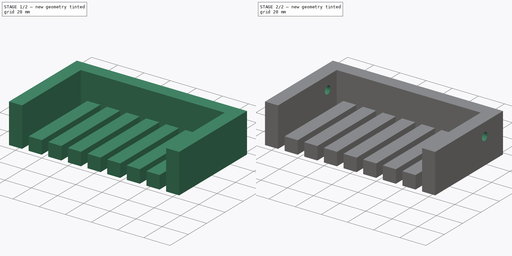
[diagram: build sequence overview — one tinted view per stage of 2, left to right]
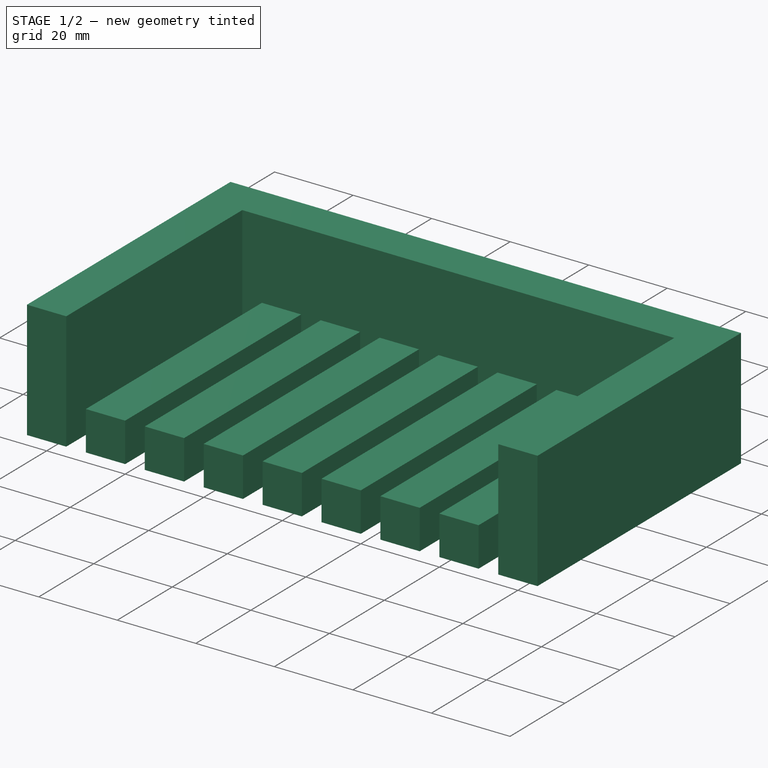
[diagram: stage 1 of 2 — iso view after this stage's code; geometry added in this stage tinted green]
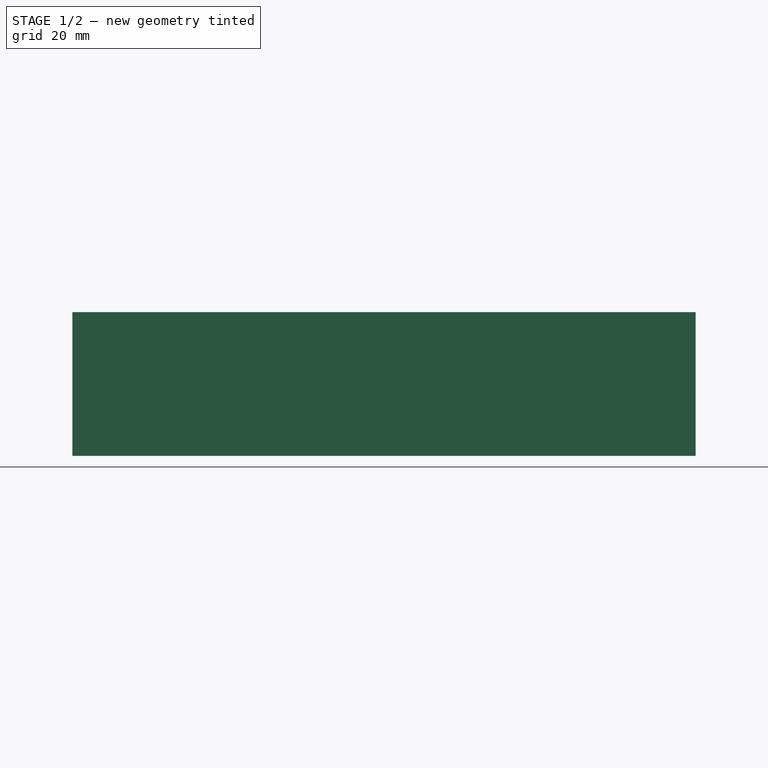
[diagram: stage 1 of 2 — front view after this stage's code; geometry added in this stage tinted green]
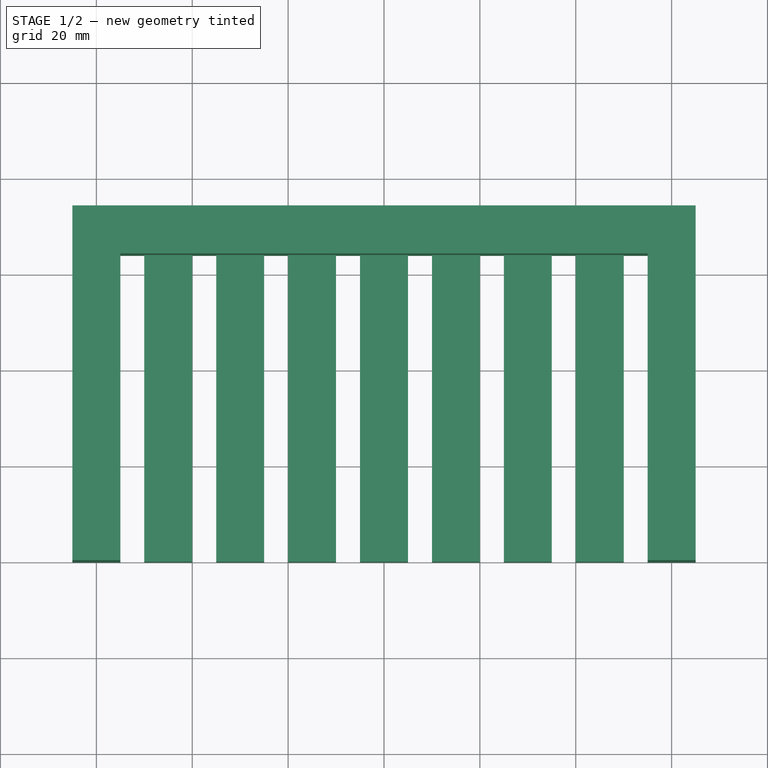
[diagram: stage 1 of 2 — top view after this stage's code; geometry added in this stage tinted green]
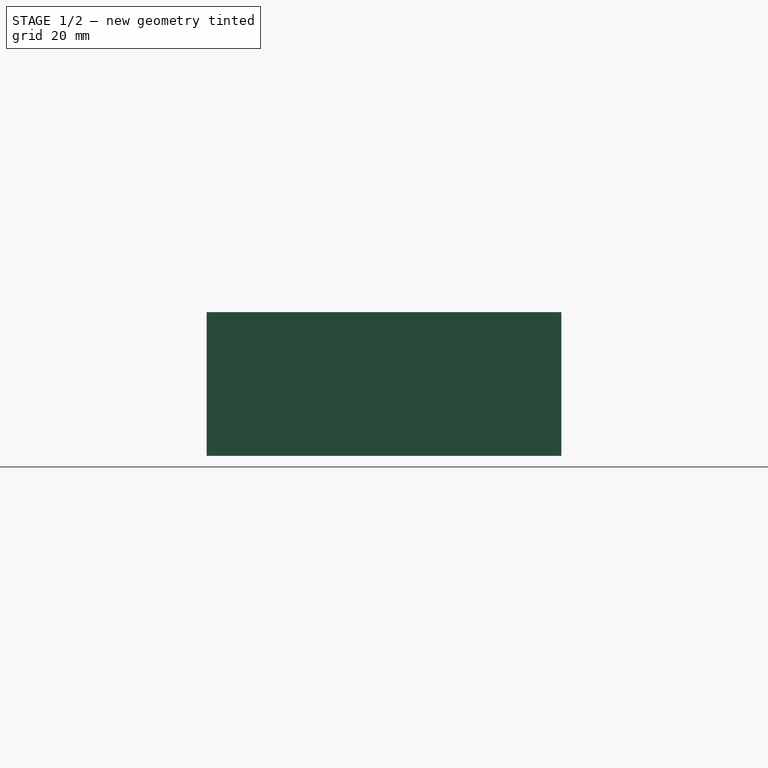
[diagram: stage 1 of 2 — right view after this stage's code; geometry added in this stage tinted green]
FCSTD DOCUMENT  (FreeCAD 1.0R38641 +678 (Git))
Label: cable_holder
License: All rights reserved
LicenseURL: https://en.wikipedia.org/wiki/All_rights_reserved
objects: Sketcher::SketchObject×3, PartDesign::Pad×2, PartDesign::Pocket×1, PartDesign::Body×1
note: 16 computed .brp shape members not serialized (recipe doc carries the construction recipe); baked Part::Feature solids carry a one-line shape summary decoded from their .brp

FEATURE [Sketcher::SketchObject] Sketch
  ArcFitTolerance = 1e-06
  AttachmentSupport = -> [XY_Plane]
  FullyConstrained = true
  MakeInternals = false
  MapMode = 5
  sketch-geometry (37):
    g0: LineSegment StartX=-65 StartY=0 StartZ=0 EndX=-55 EndY=0 EndZ=0
    g1: LineSegment StartX=-55 StartY=0 StartZ=0 EndX=-55 EndY=64 EndZ=0
    g2: LineSegment StartX=-55 StartY=64 StartZ=0 EndX=-50 EndY=64 EndZ=0
    g3: LineSegment StartX=-50 StartY=64 StartZ=0 EndX=-50 EndY=0 EndZ=0
    g4: LineSegment StartX=-50 StartY=0 StartZ=0 EndX=-40 EndY=0 EndZ=0
    g5: LineSegment StartX=-40 StartY=0 StartZ=0 EndX=-40 EndY=64 EndZ=0
    g6: LineSegment StartX=-40 StartY=64 StartZ=0 EndX=-35 EndY=64 EndZ=0
    g7: LineSegment StartX=-35 StartY=64 StartZ=0 EndX=-35 EndY=0 EndZ=0
    g8: LineSegment StartX=-35 StartY=0 StartZ=0 EndX=-25 EndY=0 EndZ=0
    g9: LineSegment StartX=-25 StartY=0 StartZ=0 EndX=-25 EndY=64 EndZ=0
    g10: LineSegment StartX=-25 StartY=64 StartZ=0 EndX=-20 EndY=64 EndZ=0
    g11: LineSegment StartX=-20 StartY=64 StartZ=0 EndX=-20 EndY=0 EndZ=0
    g12: LineSegment StartX=-20 StartY=0 StartZ=0 EndX=-10 EndY=0 EndZ=0
    g13: LineSegment StartX=-10 StartY=0 StartZ=0 EndX=-10 EndY=64 EndZ=0
    g14: LineSegment StartX=-10 StartY=64 StartZ=0 EndX=-5 EndY=64 EndZ=0
    g15: LineSegment StartX=-5 StartY=64 StartZ=0 EndX=-5 EndY=0 EndZ=0
    g16: LineSegment StartX=-5 StartY=0 StartZ=0 EndX=5 EndY=0 EndZ=0
    g17: LineSegment StartX=5 StartY=0 StartZ=0 EndX=5 EndY=64 EndZ=0
    g18: LineSegment StartX=5 StartY=64 StartZ=0 EndX=10 EndY=64 EndZ=0
    g19: LineSegment StartX=10 StartY=64 StartZ=0 EndX=10 EndY=0 EndZ=0
    g20: LineSegment StartX=10 StartY=0 StartZ=0 EndX=20 EndY=0 EndZ=0
    g21: LineSegment StartX=20 StartY=0 StartZ=0 EndX=20 EndY=64 EndZ=0
    g22: LineSegment StartX=20 StartY=64 StartZ=0 EndX=25 EndY=64 EndZ=0
    g23: LineSegment StartX=25 StartY=64 StartZ=0 EndX=25 EndY=0 EndZ=0
    g24: LineSegment StartX=25 StartY=0 StartZ=0 EndX=35 EndY=0 EndZ=0
    g25: LineSegment StartX=35 StartY=0 StartZ=0 EndX=35 EndY=64 EndZ=0
    g26: LineSegment StartX=35 StartY=64 StartZ=0 EndX=40 EndY=64 EndZ=0
    g27: LineSegment StartX=40 StartY=64 StartZ=0 EndX=40 EndY=0 EndZ=0
    g28: LineSegment StartX=40 StartY=0 StartZ=0 EndX=50 EndY=0 EndZ=0
    g29: LineSegment StartX=50 StartY=0 StartZ=0 EndX=50 EndY=64 EndZ=0
    g30: LineSegment StartX=50 StartY=64 StartZ=0 EndX=55 EndY=64 EndZ=0
    g31: LineSegment StartX=55 StartY=64 StartZ=0 EndX=55 EndY=0 EndZ=0
    g32: LineSegment StartX=55 StartY=0 StartZ=0 EndX=65 EndY=0 EndZ=0
    g33: LineSegment StartX=65 StartY=0 StartZ=0 EndX=65 EndY=74 EndZ=0
    g34: LineSegment StartX=65 StartY=74 StartZ=0 EndX=-65 EndY=74 EndZ=0
    g35: LineSegment StartX=-65 StartY=74 StartZ=0 EndX=-65 EndY=0 EndZ=0
    g36: LineSegment [constr] StartX=-65 StartY=64 StartZ=0 EndX=65 EndY=64 EndZ=0
  constraints (111):
    c: PointOnObject(g0,g-1)
    c: Coincident(g0,g1)
    c: Vertical(g1)
    c: Coincident(g1,g2)
    c: Horizontal(g2)
    c: Coincident(g2,g3)
    c: PointOnObject(g3,g-1)
    c: Vertical(g3)
    c: Coincident(g3,g4)
    c: PointOnObject(g4,g-1)
    c: Coincident(g4,g5)
    c: Vertical(g5)
    c: Coincident(g5,g6)
    c: Horizontal(g6)
    c: Coincident(g6,g7)
    c: PointOnObject(g7,g-1)
    c: Vertical(g7)
    c: Coincident(g7,g8)
    c: PointOnObject(g8,g-1)
    c: Coincident(g8,g9)
    c: Vertical(g9)
    c: Coincident(g9,g10)
    c: Horizontal(g10)
    c: Coincident(g10,g11)
    c: PointOnObject(g11,g-1)
    c: Vertical(g11)
    c: Coincident(g11,g12)
    c: PointOnObject(g12,g-1)
    c: Coincident(g12,g13)
    c: Vertical(g13)
    c: Coincident(g13,g14)
    c: Horizontal(g14)
    c: Coincident(g14,g15)
    c: Vertical(g15)
    c: Coincident(g15,g16)
    c: PointOnObject(g16,g-1)
    c: Coincident(g16,g17)
    c: Vertical(g17)
    c: Coincident(g17,g18)
    c: Horizontal(g18)
    c: Coincident(g18,g19)
    c: PointOnObject(g19,g-1)
    c: Vertical(g19)
    c: Coincident(g19,g20)
    c: PointOnObject(g20,g-1)
    c: Coincident(g20,g21)
    c: Vertical(g21)
    c: Coincident(g21,g22)
    c: Horizontal(g22)
    c: Coincident(g22,g23)
    c: PointOnObject(g23,g-1)
    c: Vertical(g23)
    c: Coincident(g23,g24)
    c: PointOnObject(g24,g-1)
    c: Coincident(g24,g25)
    c: Vertical(g25)
    c: Coincident(g25,g26)
    c: Coincident(g26,g27)
    c: PointOnObject(g27,g-1)
    c: Vertical(g27)
    c: Coincident(g27,g28)
    c: PointOnObject(g28,g-1)
    c: Coincident(g28,g29)
    c: Vertical(g29)
    c: Coincident(g29,g30)
    c: Horizontal(g30)
    c: Coincident(g30,g31)
    c: PointOnObject(g31,g-1)
    c: Coincident(g31,g32)
    c: PointOnObject(g32,g-1)
    c: Coincident(g32,g33)
    c: Vertical(g33)
    c: Coincident(g33,g34)
    c: Horizontal(g34)
    c: Coincident(g34,g35)
    c: Vertical(g35)
    c: PointOnObject(g36,g35)
    c: PointOnObject(g36,g33)
    c: Horizontal(g36)
    c: PointOnObject(g1,g36)
    c: PointOnObject(g5,g36)
    c: PointOnObject(g9,g36)
    c: PointOnObject(g13,g36)
    c: PointOnObject(g17,g36)
    c: PointOnObject(g21,g36)
    c: PointOnObject(g25,g36)
    c: Horizontal(g26)
    c: PointOnObject(g29,g36)
    c: Vertical(g31)
    c: Coincident(g35,g0)
    c: Equal(g2,g6)
    c: Equal(g6,g10)
    c: Equal(g10,g14)
    c: Equal(g14,g18)
    c: Equal(g18,g22)
    c: Equal(g22,g26)
    c: Equal(g26,g30)
    c: Equal(g0,g4)
    c: Equal(g4,g8)
    c: Equal(g8,g12)
    c: Equal(g12,g16)
    c: Equal(g16,g20)
    c: Equal(g20,g24)
    c: Equal(g24,g28)
    c: Equal(g28,g32)
    c: Symmetric(g15,g16,g-1)
    c: DistanceX(g12,g15) = 5
    c: DistanceX(g20,g20) = 10
    c: DistanceY(g0,g36) = 64
    c: Horizontal(g0)
    c: DistanceY(g36,g33) = 10
FEATURE [PartDesign::Pad] Pad
  Direction = (0,0,1)
  Length = 10
  Length2 = 10
  Profile = -> Sketch
  ReferenceAxis = -> Sketch [N_Axis]
  Refine = true
  Suppressed = false
  Type = 0
FEATURE [Sketcher::SketchObject] Sketch001
  ArcFitTolerance = 1e-06
  AttachmentSupport = -> [Pad]
  ExternalGeometry = -> [Pad]
  FullyConstrained = true
  MakeInternals = false
  MapMode = 5
  Placement = pos=(0,0,10) rot=(0,0,1;0rad)
  sketch-geometry (8):
    g0: LineSegment StartX=-55 StartY=0 StartZ=0 EndX=-65 EndY=0 EndZ=0
    g1: LineSegment StartX=-65 StartY=0 StartZ=0 EndX=-65 EndY=74 EndZ=0
    g2: LineSegment StartX=-65 StartY=74 StartZ=0 EndX=65 EndY=74 EndZ=0
    g3: LineSegment StartX=65 StartY=74 StartZ=0 EndX=65 EndY=0 EndZ=0
    g4: LineSegment StartX=65 StartY=0 StartZ=0 EndX=55 EndY=0 EndZ=0
    g5: LineSegment StartX=55 StartY=0 StartZ=0 EndX=55 EndY=64 EndZ=0
    g6: LineSegment StartX=55 StartY=64 StartZ=0 EndX=-55 EndY=64 EndZ=0
    g7: LineSegment StartX=-55 StartY=64 StartZ=0 EndX=-55 EndY=0 EndZ=0
  constraints (16):
    c: Coincident(g0,g-9)
    c: Coincident(g0,g-6)
    c: Coincident(g1,g0)
    c: Coincident(g1,g-5)
    c: Coincident(g2,g1)
    c: Coincident(g2,g-4)
    c: Coincident(g3,g2)
    c: Coincident(g3,g-7)
    c: Coincident(g4,g3)
    c: Coincident(g4,g-8)
    c: Coincident(g5,g4)
    c: Coincident(g5,g-8)
    c: Coincident(g6,g5)
    c: Coincident(g6,g-9)
    c: Coincident(g7,g6)
    c: Coincident(g7,g0)
FEATURE [PartDesign::Pad] Pad001
  BaseFeature = -> Pad
  Direction = (0,0,1)
  Length = 20
  Length2 = 10
  Profile = -> Sketch001
  ReferenceAxis = -> Sketch001 [N_Axis]
  Refine = true
  Suppressed = false
  Type = 0
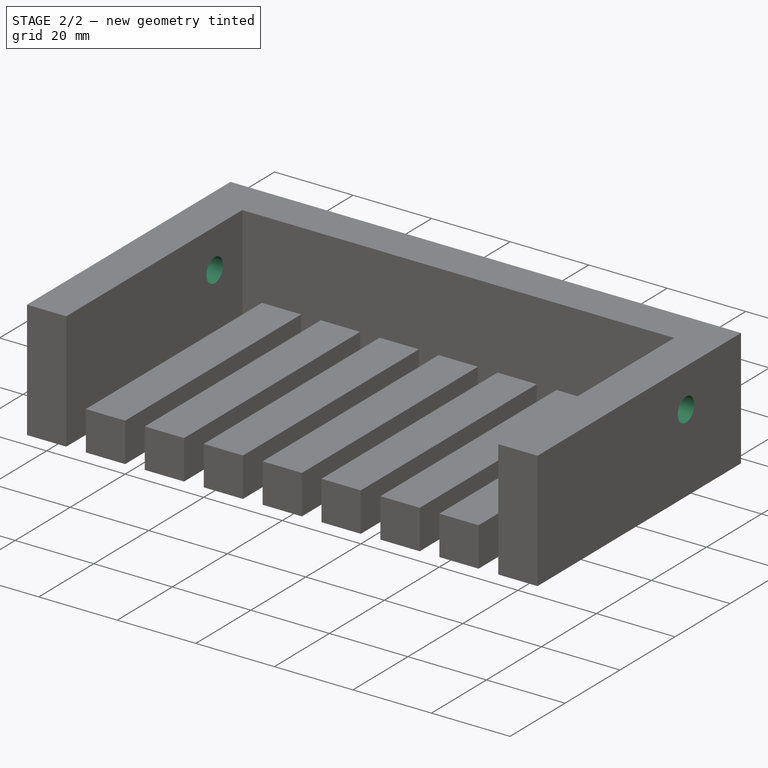
[diagram: stage 2 of 2 — iso view after this stage's code; geometry added in this stage tinted green]
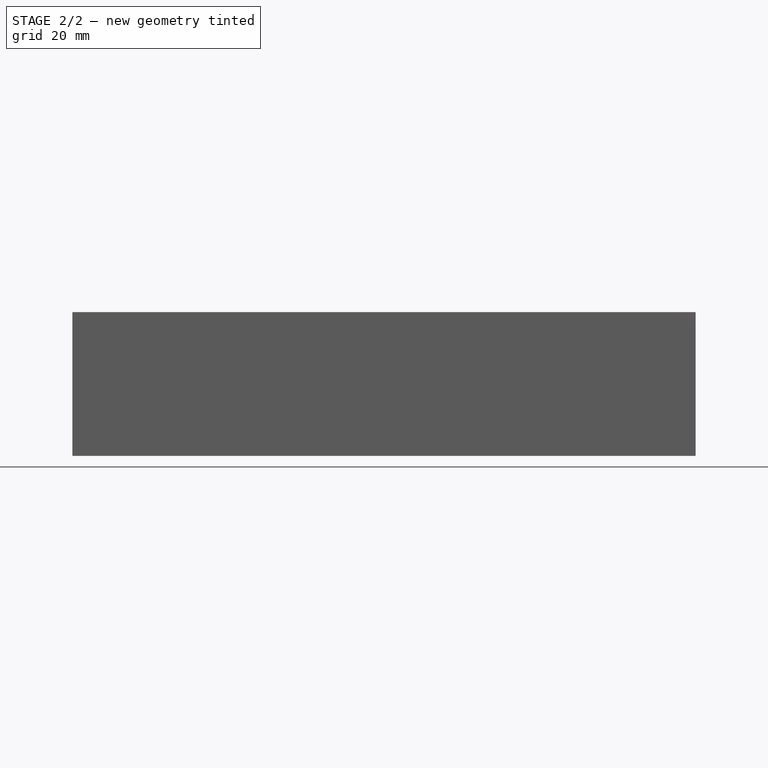
[diagram: stage 2 of 2 — front view after this stage's code; geometry added in this stage tinted green]
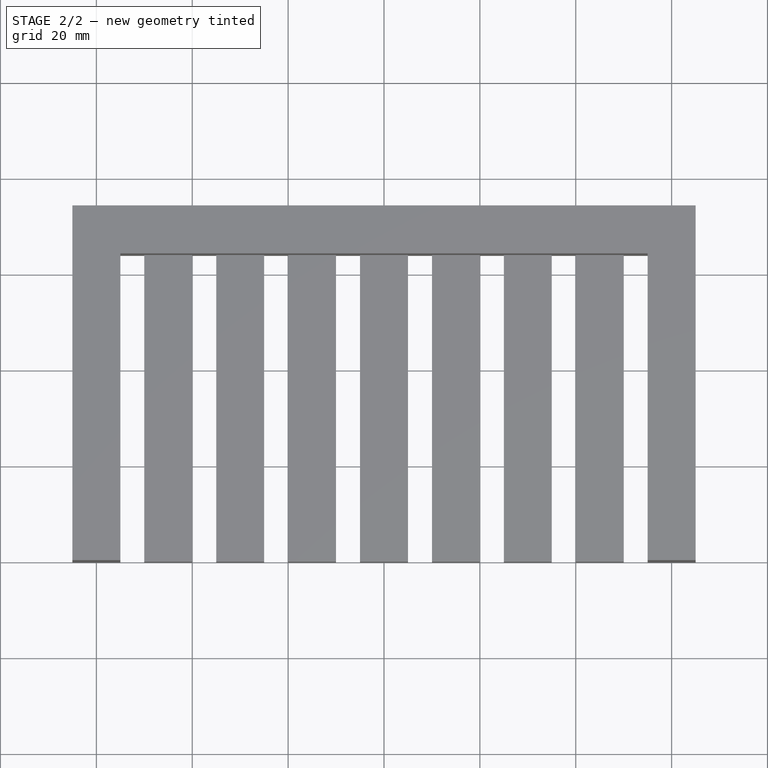
[diagram: stage 2 of 2 — top view after this stage's code; geometry added in this stage tinted green]
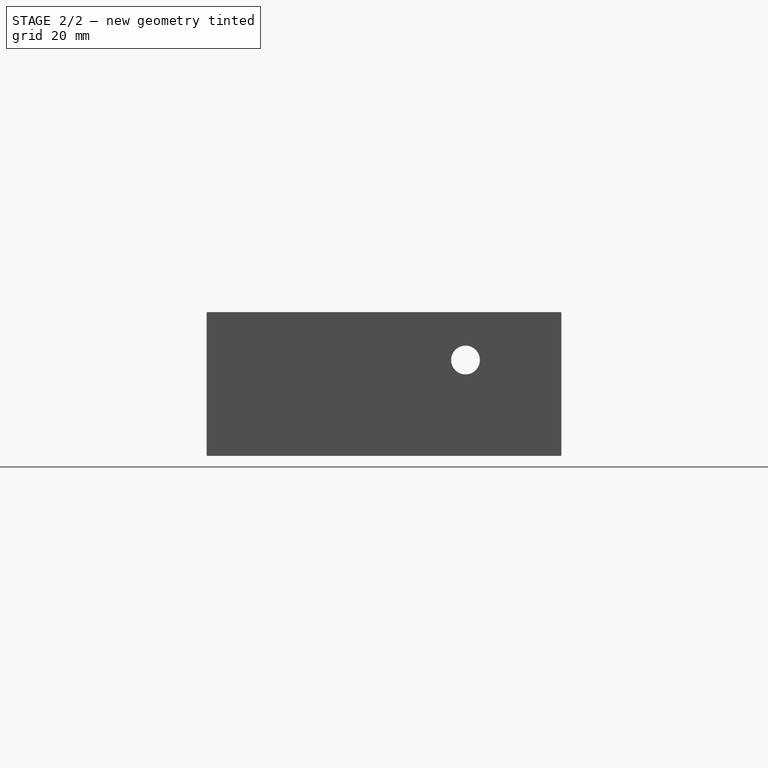
[diagram: stage 2 of 2 — right view after this stage's code; geometry added in this stage tinted green]
FEATURE [Sketcher::SketchObject] Sketch002
  ArcFitTolerance = 1e-06
  AttachmentSupport = -> [Pad001]
  ExternalGeometry = -> [Pad001]
  FullyConstrained = true
  MakeInternals = false
  MapMode = 5
  Placement = pos=(-55,0,0) rot=(0.57735,0.57735,0.57735;2.0944rad)
  sketch-geometry (2):
    g0: Circle [constr] CenterX=54 CenterY=20 CenterZ=0 NormalX=0 NormalY=0 NormalZ=1 AngleXU=0 Radius=10
    g1: Circle CenterX=54 CenterY=20 CenterZ=0 NormalX=0 NormalY=0 NormalZ=1 AngleXU=0 Radius=3
  constraints (5):
    c: Tangent(g0,g-3)
    c: Tangent(g0,g-4)
    c: Tangent(g0,g-5)
    c: Coincident(g1,g0)
    c: Diameter(g1) = 6
FEATURE [PartDesign::Pocket] Pocket
  BaseFeature = -> Pad001
  Direction = (-1,0,0)
  Length = 100
  Length2 = 5
  Midplane = true
  Profile = -> Sketch002
  ReferenceAxis = -> Sketch002 [N_Axis]
  Refine = true
  Suppressed = false
  Type = 1
FEATURE [PartDesign::Body] Body
  AllowCompound = false
  Group = -> [Sketch,Pad,Sketch001,Pad001,Sketch002,Pocket]
  Origin = -> Origin
  Tip = -> Pocket
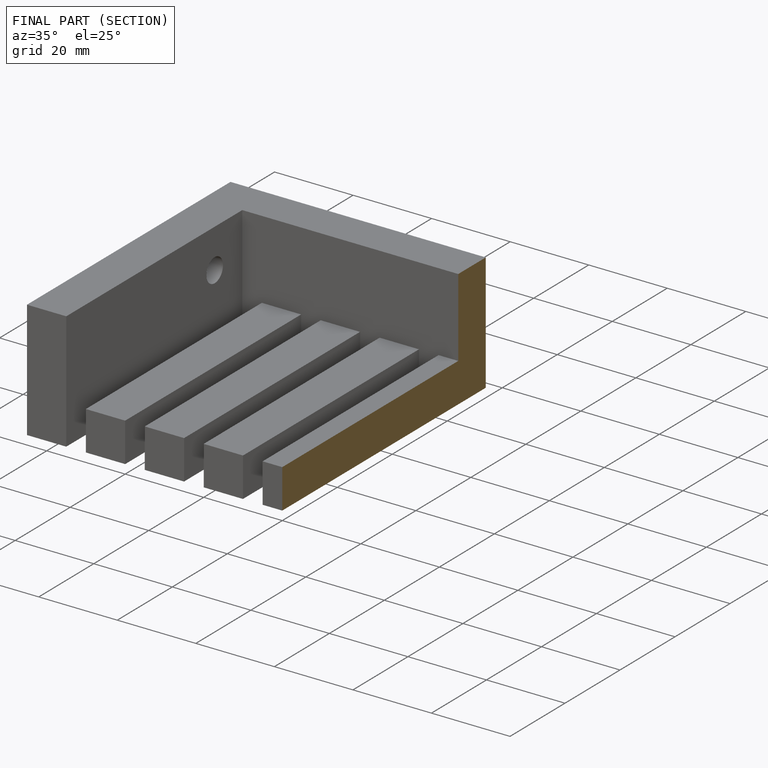
[diagram: finished part — half-section view (interior)]
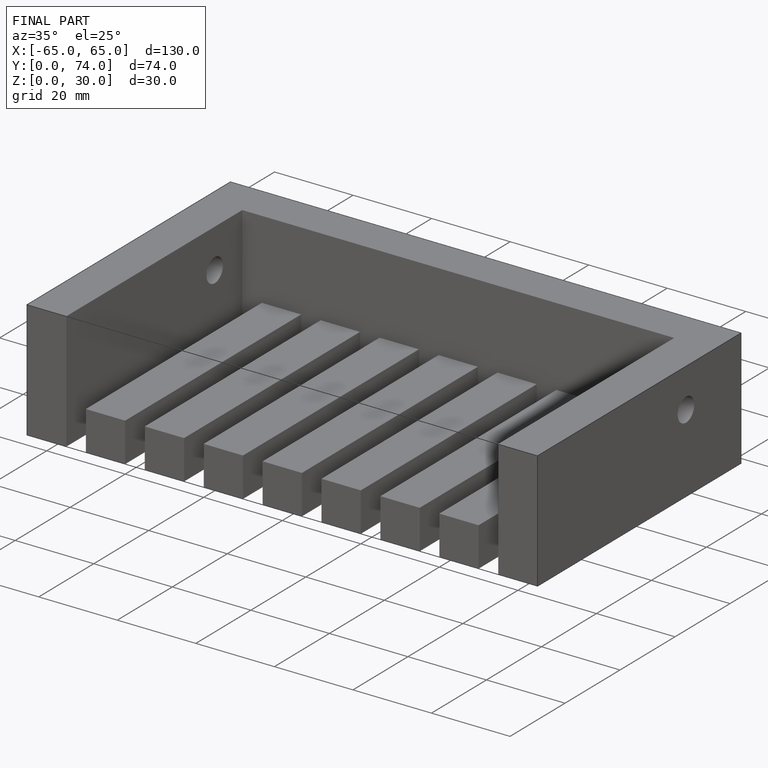
[diagram: finished part — iso view with bounding-box wireframe]
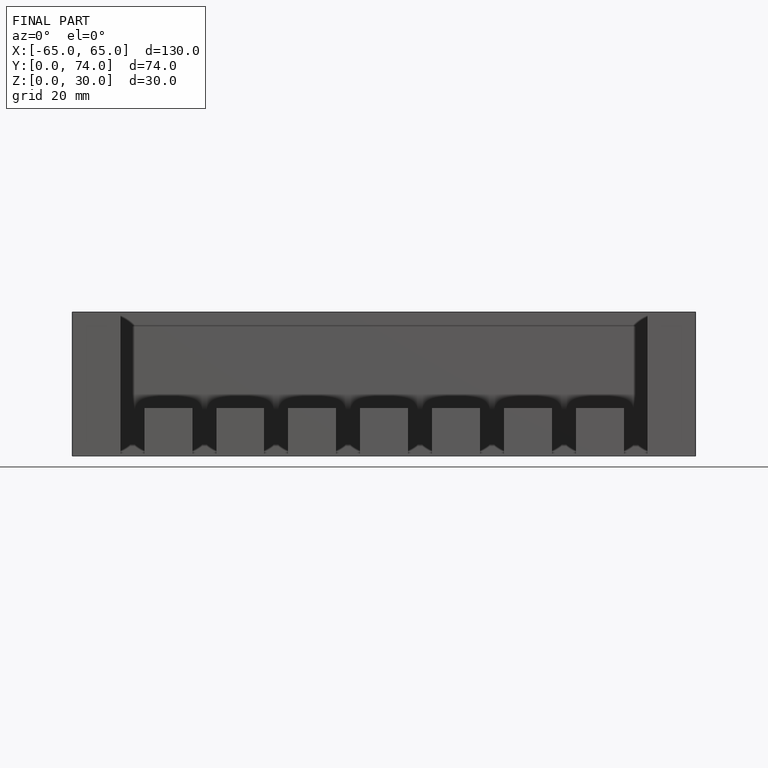
[diagram: finished part — front view with bounding-box wireframe]
